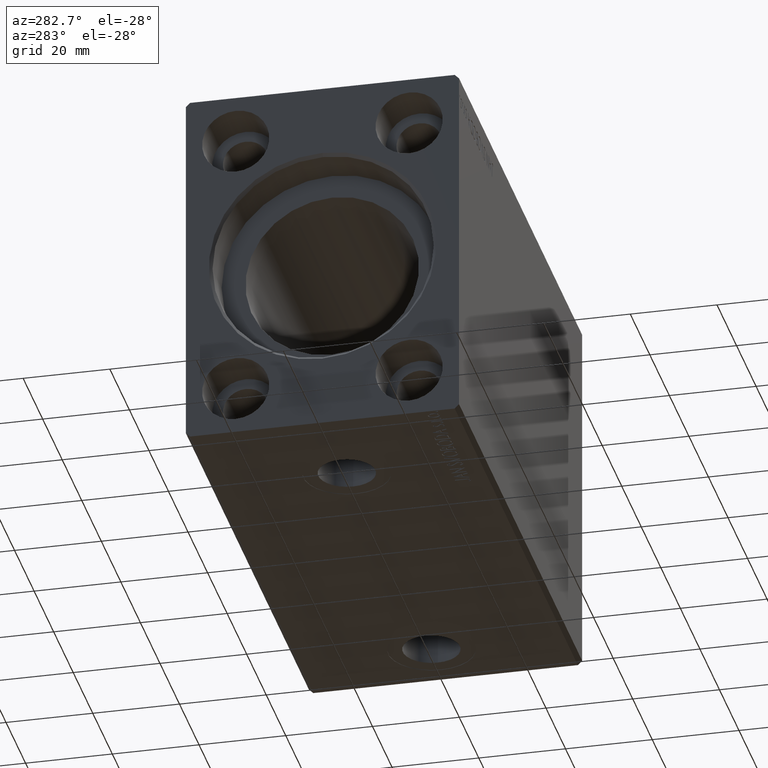
[diagram: clean part render]
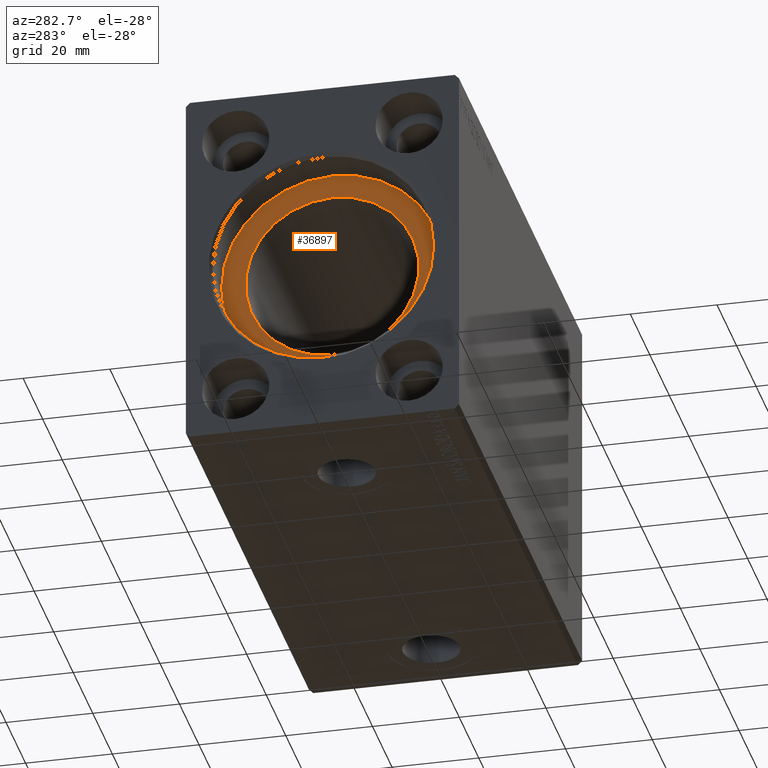
[diagram: same view with one face highlighted and labeled with its STEP entity id]
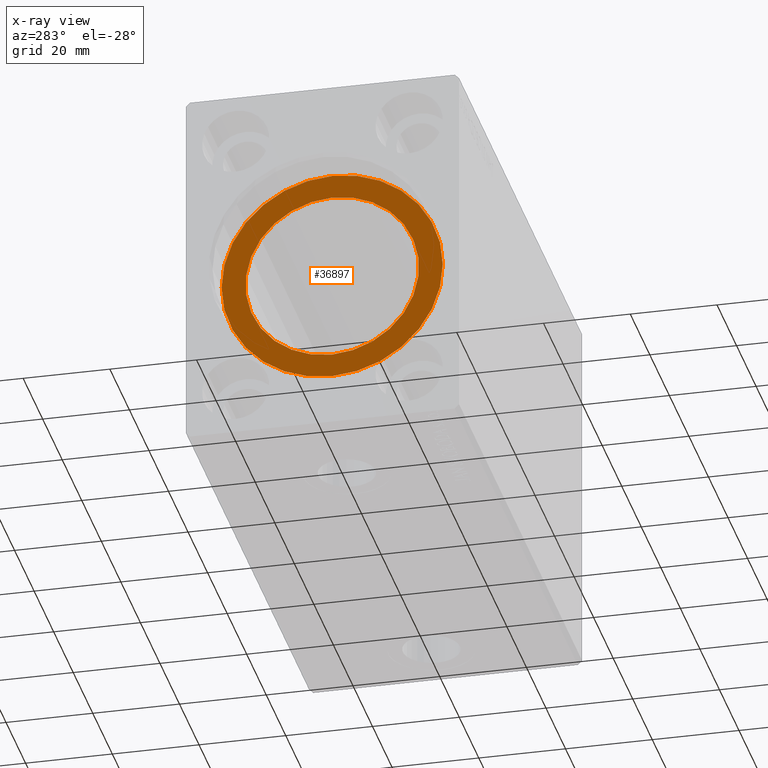
[diagram: x-ray of the same camera — body ghosted, the highlighted face saturated]
A machine part, auxiliary view. The second image highlights one B-rep face of the part: STEP entity #36897.
The next image is the same camera in x-ray: the body ghosted, the highlighted face saturated — about 0% of this face is hidden behind the body in this view.
In plain terms, the highlighted planar face has unit normal (-1, 0, 0).
Its self-contained STEP definition (entity closure, byte-faithful):
#344 = DIRECTION ( 'NONE',  ( 0.000000000000000000, 0.000000000000000000, 1.000000000000000000 ) ) ;
#1609 = DIRECTION ( 'NONE',  ( 0.000000000000000000, 0.000000000000000000, 1.000000000000000000 ) ) ;
#1926 = CARTESIAN_POINT ( 'NONE',  ( 9.999999999999994671, 0.000000000000000000, 0.000000000000000000 ) ) ;
#2057 = AXIS2_PLACEMENT_3D ( 'NONE', #16463, #6774, #344 ) ;
#2283 = VERTEX_POINT ( 'NONE', #39931 ) ;
#4124 = AXIS2_PLACEMENT_3D ( 'NONE', #24393, #5433, #1609 ) ;
#5433 = DIRECTION ( 'NONE',  ( -1.000000000000000000, 0.000000000000000000, 0.000000000000000000 ) ) ;
#6774 = DIRECTION ( 'NONE',  ( -1.000000000000000000, 0.000000000000000000, 0.000000000000000000 ) ) ;
#7038 = VERTEX_POINT ( 'NONE', #41693 ) ;
#9091 = CARTESIAN_POINT ( 'NONE',  ( 10.00000000000000000, 0.000000000000000000, 0.000000000000000000 ) ) ;
#13341 = EDGE_CURVE ( 'NONE', #36659, #7038, #36391, .T. ) ;
#14451 = EDGE_LOOP ( 'NONE', ( #17444, #16503 ) ) ;
#14918 = CIRCLE ( 'NONE', #38924, 20.00000000000000000 ) ;
#15339 = FACE_OUTER_BOUND ( 'NONE', #14451, .T. ) ;
#15545 = PLANE ( 'NONE',  #20580 ) ;
#16463 = CARTESIAN_POINT ( 'NONE',  ( 10.00000000000000000, 0.000000000000000000, 0.000000000000000000 ) ) ;
#16503 = ORIENTED_EDGE ( 'NONE', *, *, #13341, .T. ) ;
#17444 = ORIENTED_EDGE ( 'NONE', *, *, #37508, .T. ) ;
#18569 = FACE_BOUND ( 'NONE', #31366, .T. ) ;
#19496 = DIRECTION ( 'NONE',  ( 0.000000000000000000, 0.000000000000000000, 1.000000000000000000 ) ) ;
#19700 = CARTESIAN_POINT ( 'NONE',  ( 9.999999999999994671, 0.000000000000000000, 0.000000000000000000 ) ) ;
#20580 = AXIS2_PLACEMENT_3D ( 'NONE', #9091, #22208, #35321 ) ;
#22208 = DIRECTION ( 'NONE',  ( -1.000000000000000000, 0.000000000000000000, 0.000000000000000000 ) ) ;
#24369 = VERTEX_POINT ( 'NONE', #38121 ) ;
#24393 = CARTESIAN_POINT ( 'NONE',  ( 10.00000000000000000, 0.000000000000000000, 0.000000000000000000 ) ) ;
#26521 = EDGE_CURVE ( 'NONE', #24369, #2283, #28703, .T. ) ;
#28703 = CIRCLE ( 'NONE', #32143, 20.00000000000000000 ) ;
#29769 = EDGE_CURVE ( 'NONE', #2283, #24369, #14918, .T. ) ;
#31366 = EDGE_LOOP ( 'NONE', ( #40662, #34524 ) ) ;
#31813 = DIRECTION ( 'NONE',  ( -1.000000000000000000, 0.000000000000000000, 0.000000000000000000 ) ) ;
#32143 = AXIS2_PLACEMENT_3D ( 'NONE', #19700, #35403, #19496 ) ;
#32945 = CIRCLE ( 'NONE', #4124, 25.50000000000000000 ) ;
#34524 = ORIENTED_EDGE ( 'NONE', *, *, #26521, .F. ) ;
#35321 = DIRECTION ( 'NONE',  ( 0.000000000000000000, 0.000000000000000000, 1.000000000000000000 ) ) ;
#35403 = DIRECTION ( 'NONE',  ( -1.000000000000000000, 0.000000000000000000, 0.000000000000000000 ) ) ;
#36391 = CIRCLE ( 'NONE', #2057, 25.50000000000000000 ) ;
#36659 = VERTEX_POINT ( 'NONE', #40702 ) ;
#36897 = ADVANCED_FACE ( 'NONE', ( #18569, #15339 ), #15545, .T. ) ;
#37508 = EDGE_CURVE ( 'NONE', #7038, #36659, #32945, .T. ) ;
#38121 = CARTESIAN_POINT ( 'NONE',  ( 9.999999999999994671, 2.449293598294706513E-15, -20.00000000000000000 ) ) ;
#38924 = AXIS2_PLACEMENT_3D ( 'NONE', #1926, #31813, #41873 ) ;
#39931 = CARTESIAN_POINT ( 'NONE',  ( 9.999999999999994671, 0.000000000000000000, 20.00000000000000000 ) ) ;
#40662 = ORIENTED_EDGE ( 'NONE', *, *, #29769, .F. ) ;
#40702 = CARTESIAN_POINT ( 'NONE',  ( 10.00000000000000000, 3.122849337825750222E-15, -25.50000000000000000 ) ) ;
#41693 = CARTESIAN_POINT ( 'NONE',  ( 10.00000000000000000, 0.000000000000000000, 25.50000000000000000 ) ) ;
#41873 = DIRECTION ( 'NONE',  ( 0.000000000000000000, 0.000000000000000000, 1.000000000000000000 ) ) ;